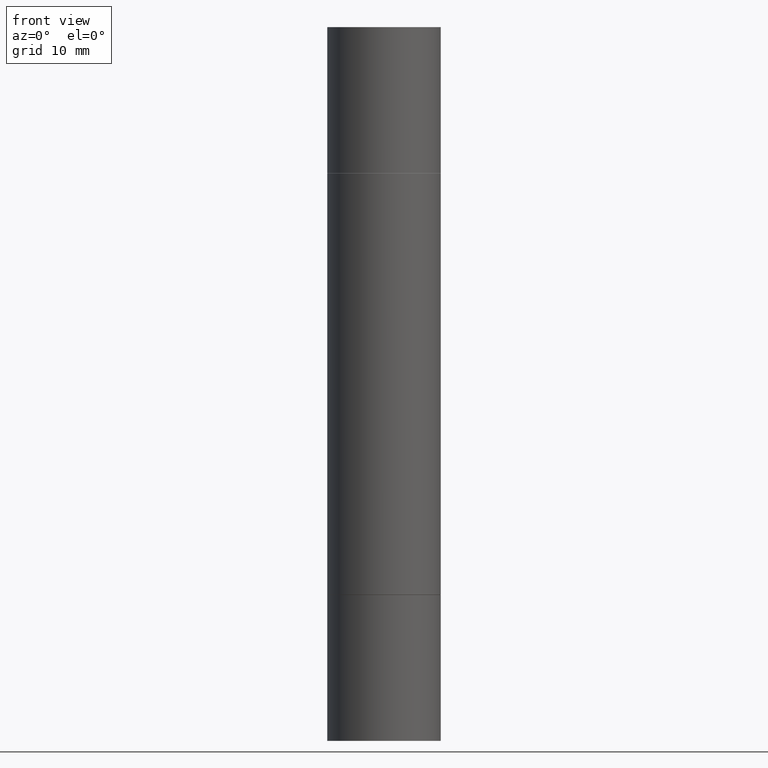
[diagram: clean part render]
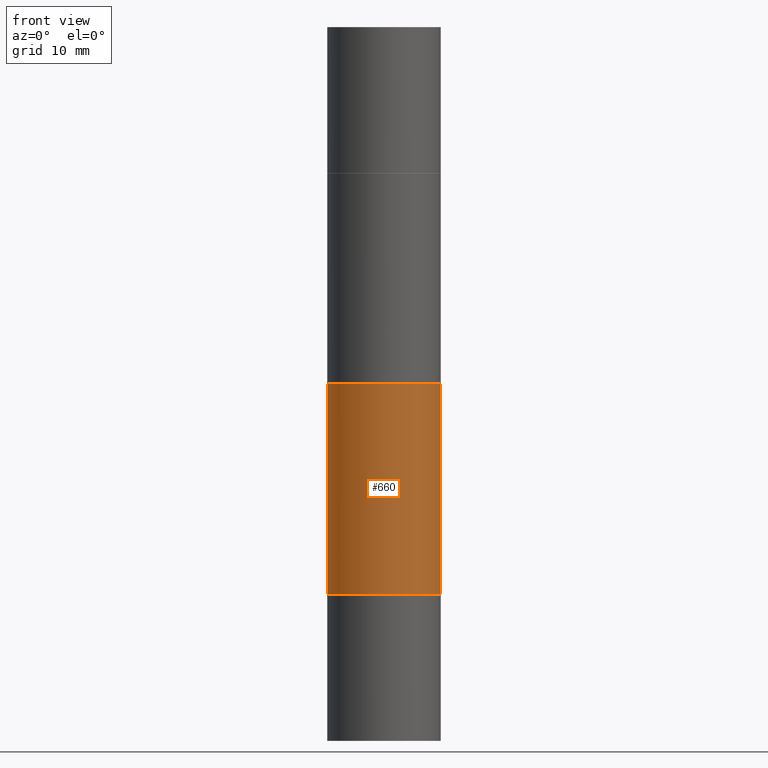
[diagram: same view with one face highlighted and labeled with its STEP entity id]
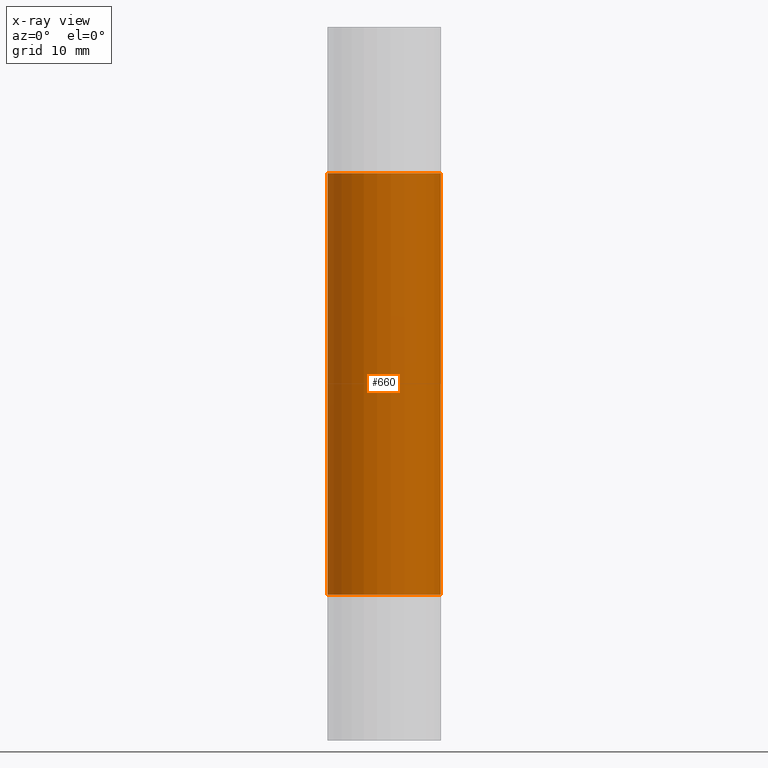
[diagram: x-ray of the same camera — body ghosted, the highlighted face saturated]
A machine part, front view. The second image highlights one B-rep face of the part: STEP entity #660.
The next image is the same camera in x-ray: the body ghosted, the highlighted face saturated — about 0% of this face is hidden behind the body in this view.
In plain terms, the highlighted cylindrical surface (partial cylindrical patch) has radius 5.5562 mm, axis along (-0, -0, -1).
Its self-contained STEP definition (entity closure, byte-faithful):
#8 = EDGE_CURVE ( 'NONE', #309, #414, #149, .T. ) ;
#42 = FACE_OUTER_BOUND ( 'NONE', #451, .T. ) ;
#57 = DIRECTION ( 'NONE',  ( 2.445468806185136597E-29, 3.492890411551752677E-15, 1.000000000000000000 ) ) ;
#75 = AXIS2_PLACEMENT_3D ( 'NONE', #124, #375, #644 ) ;
#82 = DIRECTION ( 'NONE',  ( 1.000000000000000000, -6.982962677686267499E-15, 0.000000000000000000 ) ) ;
#100 = EDGE_CURVE ( 'NONE', #132, #309, #599, .T. ) ;
#120 = ORIENTED_EDGE ( 'NONE', *, *, #100, .F. ) ;
#124 = CARTESIAN_POINT ( 'NONE',  ( 5.348240279126892383E-29, -7.635869688049957955E-15, -2.186999999999999833 ) ) ;
#128 = CARTESIAN_POINT ( 'NONE',  ( -0.2187499999999999445, -4.638258897167772766E-16, -0.5629999999999997229 ) ) ;
#129 = DIRECTION ( 'NONE',  ( 1.000000000000000000, -6.982962677686266711E-15, 0.000000000000000000 ) ) ;
#132 = VERTEX_POINT ( 'NONE', #128 ) ;
#139 = DIRECTION ( 'NONE',  ( -2.445468806185136597E-29, -3.492890411551752677E-15, -1.000000000000000000 ) ) ;
#142 = CYLINDRICAL_SURFACE ( 'NONE', #320, 0.2187499999999998612 ) ;
#149 = LINE ( 'NONE', #666, #247 ) ;
#154 = VECTOR ( 'NONE', #526, 39.37007874015748143 ) ;
#160 = CARTESIAN_POINT ( 'NONE',  ( 5.348240279126892383E-29, -1.964559826729300003E-15, -0.5629999999999997229 ) ) ;
#200 = ORIENTED_EDGE ( 'NONE', *, *, #340, .T. ) ;
#209 = CARTESIAN_POINT ( 'NONE',  ( 0.2187499999999999445, -3.492082912473170057E-15, -0.5629999999999997229 ) ) ;
#226 = VERTEX_POINT ( 'NONE', #469 ) ;
#247 = VECTOR ( 'NONE', #503, 39.37007874015748143 ) ;
#257 = CARTESIAN_POINT ( 'NONE',  ( 0.2187499999999999445, -9.163392773793829586E-15, -2.186999999999999833 ) ) ;
#261 = AXIS2_PLACEMENT_3D ( 'NONE', #160, #57, #129 ) ;
#309 = VERTEX_POINT ( 'NONE', #209 ) ;
#320 = AXIS2_PLACEMENT_3D ( 'NONE', #444, #139, #82 ) ;
#338 = ORIENTED_EDGE ( 'NONE', *, *, #8, .F. ) ;
#340 = EDGE_CURVE ( 'NONE', #132, #226, #407, .T. ) ;
#375 = DIRECTION ( 'NONE',  ( -2.445468806185136597E-29, 3.491481338843145583E-15, 1.000000000000000000 ) ) ;
#407 = LINE ( 'NONE', #524, #154 ) ;
#414 = VERTEX_POINT ( 'NONE', #257 ) ;
#425 = CIRCLE ( 'NONE', #75, 0.2187499999999999445 ) ;
#430 = EDGE_CURVE ( 'NONE', #226, #414, #425, .T. ) ;
#444 = CARTESIAN_POINT ( 'NONE',  ( 0.000000000000000000, -9.603511156792982543E-15, -2.749999999999999556 ) ) ;
#451 = EDGE_LOOP ( 'NONE', ( #120, #200, #481, #338 ) ) ;
#469 = CARTESIAN_POINT ( 'NONE',  ( -0.2187499999999999445, -3.300052903896800034E-15, -2.186999999999999833 ) ) ;
#481 = ORIENTED_EDGE ( 'NONE', *, *, #430, .T. ) ;
#503 = DIRECTION ( 'NONE',  ( -2.445468806185136877E-29, -3.492890411551753071E-15, -1.000000000000000000 ) ) ;
#524 = CARTESIAN_POINT ( 'NONE',  ( -0.2187499999999998612, -8.102777219780461591E-15, -2.749999999999999556 ) ) ;
#526 = DIRECTION ( 'NONE',  ( -2.445468806185136877E-29, -3.492890411551753071E-15, -1.000000000000000000 ) ) ;
#599 = CIRCLE ( 'NONE', #261, 0.2187499999999999445 ) ;
#644 = DIRECTION ( 'NONE',  ( 1.000000000000000000, -6.982962677686269077E-15, 0.000000000000000000 ) ) ;
#660 = ADVANCED_FACE ( 'NONE', ( #42 ), #142, .T. ) ;
#666 = CARTESIAN_POINT ( 'NONE',  ( 0.2187499999999998612, -1.113103424253685260E-14, -2.749999999999999556 ) ) ;